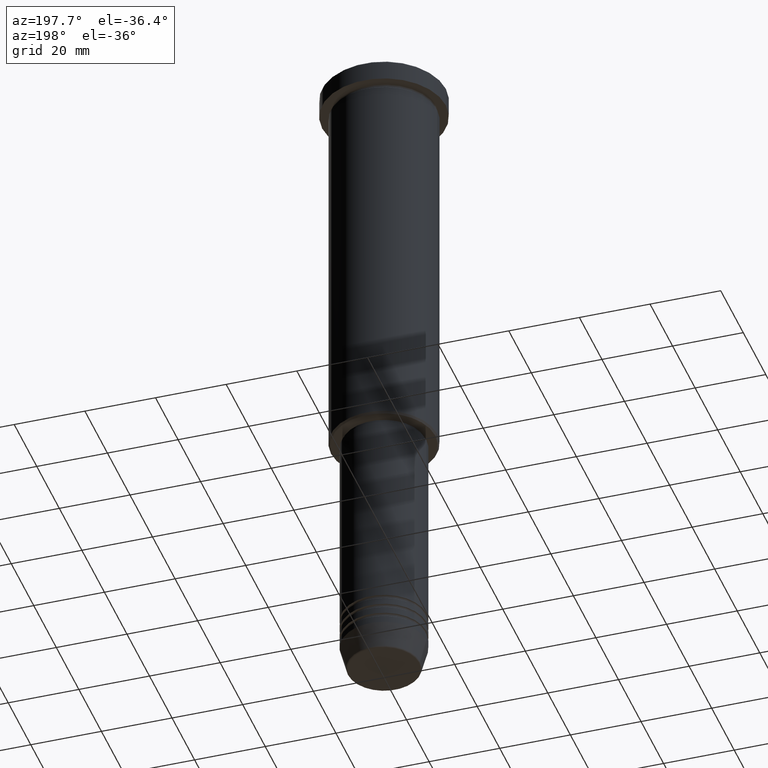
[diagram: clean part render]
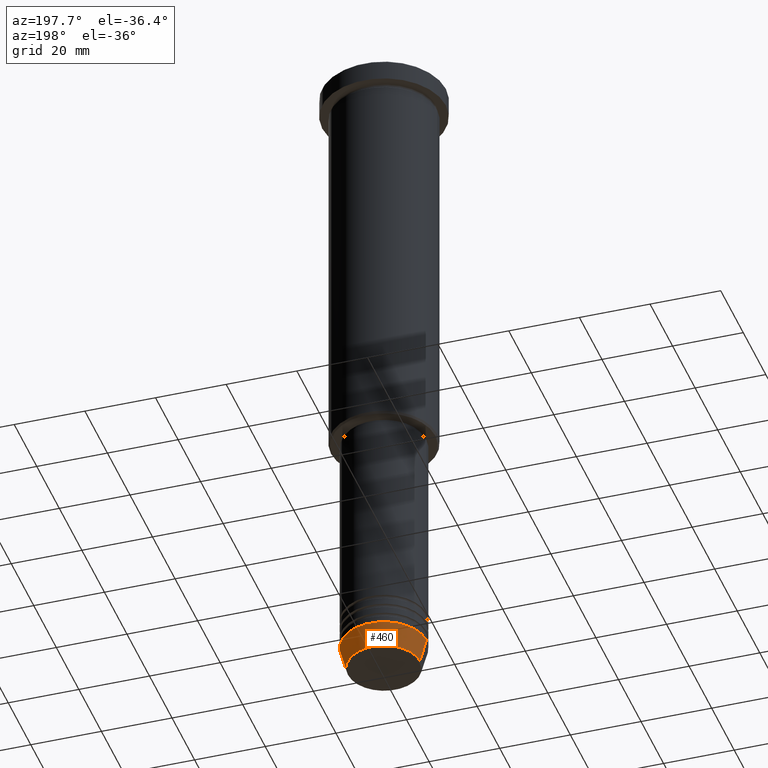
[diagram: same view with one face highlighted and labeled with its STEP entity id]
A machine part, auxiliary view. The second image highlights one B-rep face of the part: STEP entity #460.
In plain terms, the highlighted conical surface has half-angle 15 deg.
Its self-contained STEP definition (entity closure, byte-faithful):
#13 = CARTESIAN_POINT ( 'NONE',  ( -12.00000000000000000, 1.469576158976823947E-15, -184.0000000000000284 ) ) ;
#34 = ORIENTED_EDGE ( 'NONE', *, *, #358, .T. ) ;
#178 = AXIS2_PLACEMENT_3D ( 'NONE', #752, #309, #665 ) ;
#184 = CARTESIAN_POINT ( 'NONE',  ( -10.22365507213719837, 1.360806402472383336E-15, -190.6294095225512706 ) ) ;
#212 = CARTESIAN_POINT ( 'NONE',  ( 10.22365507213719660, 0.000000000000000000, -190.6294095225512706 ) ) ;
#248 = EDGE_LOOP ( 'NONE', ( #617, #34, #826, #1062 ) ) ;
#269 = DIRECTION ( 'NONE',  ( 0.2588190451025213501, 0.000000000000000000, 0.9659258262890680902 ) ) ;
#309 = DIRECTION ( 'NONE',  ( -0.000000000000000000, -0.000000000000000000, 1.000000000000000000 ) ) ;
#315 = AXIS2_PLACEMENT_3D ( 'NONE', #323, #440, #700 ) ;
#323 = CARTESIAN_POINT ( 'NONE',  ( 0.000000000000000000, 0.000000000000000000, -184.0000000000000284 ) ) ;
#358 = EDGE_CURVE ( 'NONE', #570, #1027, #472, .T. ) ;
#360 = CARTESIAN_POINT ( 'NONE',  ( 12.00000000000000000, 0.000000000000000000, -184.0000000000000284 ) ) ;
#375 = VECTOR ( 'NONE', #909, 1000.000000000000000 ) ;
#433 = FACE_OUTER_BOUND ( 'NONE', #248, .T. ) ;
#440 = DIRECTION ( 'NONE',  ( -0.000000000000000000, -0.000000000000000000, 1.000000000000000000 ) ) ;
#448 = EDGE_CURVE ( 'NONE', #588, #1027, #1067, .T. ) ;
#460 = ADVANCED_FACE ( 'NONE', ( #433 ), #1182, .T. ) ;
#472 = LINE ( 'NONE', #13, #375 ) ;
#514 = DIRECTION ( 'NONE',  ( 1.000000000000000000, 0.000000000000000000, 0.000000000000000000 ) ) ;
#556 = VERTEX_POINT ( 'NONE', #212 ) ;
#570 = VERTEX_POINT ( 'NONE', #184 ) ;
#588 = VERTEX_POINT ( 'NONE', #1047 ) ;
#617 = ORIENTED_EDGE ( 'NONE', *, *, #679, .T. ) ;
#637 = LINE ( 'NONE', #360, #744 ) ;
#665 = DIRECTION ( 'NONE',  ( 1.000000000000000000, 0.000000000000000000, 0.000000000000000000 ) ) ;
#679 = EDGE_CURVE ( 'NONE', #556, #570, #1048, .T. ) ;
#700 = DIRECTION ( 'NONE',  ( 1.000000000000000000, 0.000000000000000000, 0.000000000000000000 ) ) ;
#744 = VECTOR ( 'NONE', #269, 1000.000000000000000 ) ;
#752 = CARTESIAN_POINT ( 'NONE',  ( 0.000000000000000000, 0.000000000000000000, -184.0000000000000284 ) ) ;
#761 = AXIS2_PLACEMENT_3D ( 'NONE', #789, #888, #514 ) ;
#789 = CARTESIAN_POINT ( 'NONE',  ( 0.000000000000000000, 0.000000000000000000, -190.6294095225512706 ) ) ;
#826 = ORIENTED_EDGE ( 'NONE', *, *, #448, .F. ) ;
#888 = DIRECTION ( 'NONE',  ( -0.000000000000000000, -0.000000000000000000, 1.000000000000000000 ) ) ;
#901 = EDGE_CURVE ( 'NONE', #556, #588, #637, .T. ) ;
#909 = DIRECTION ( 'NONE',  ( -0.2588190451025213501, 3.169619151431772337E-17, 0.9659258262890680902 ) ) ;
#979 = CARTESIAN_POINT ( 'NONE',  ( -12.00000000000000000, 1.469576158976823947E-15, -184.0000000000000284 ) ) ;
#1027 = VERTEX_POINT ( 'NONE', #979 ) ;
#1047 = CARTESIAN_POINT ( 'NONE',  ( 12.00000000000000000, 0.000000000000000000, -184.0000000000000284 ) ) ;
#1048 = CIRCLE ( 'NONE', #761, 10.22365507213719660 ) ;
#1062 = ORIENTED_EDGE ( 'NONE', *, *, #901, .F. ) ;
#1067 = CIRCLE ( 'NONE', #178, 12.00000000000000000 ) ;
#1182 = CONICAL_SURFACE ( 'NONE', #315, 12.00000000000000000, 0.2617993877991500740 ) ;